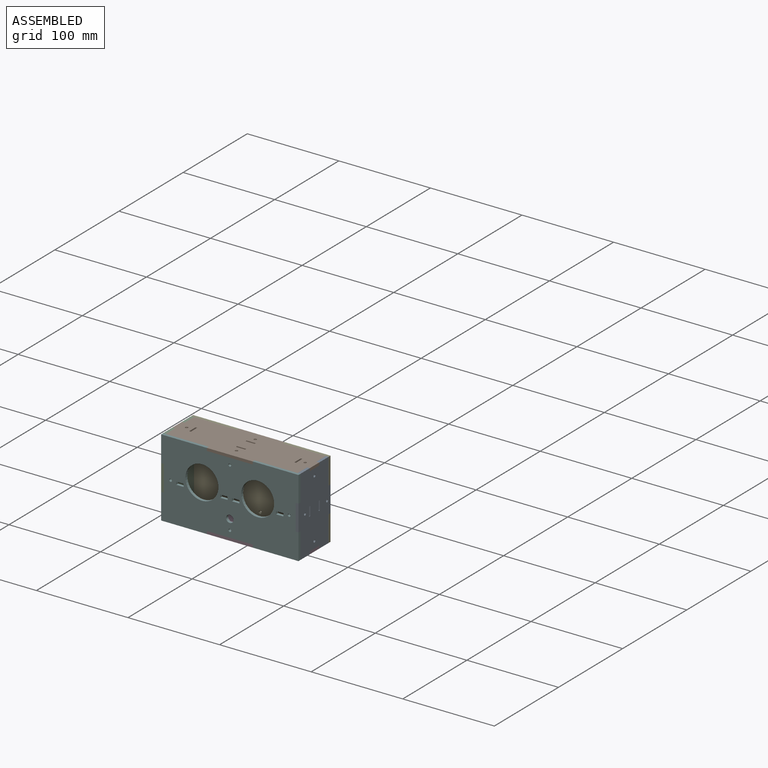
[diagram: assembled view]
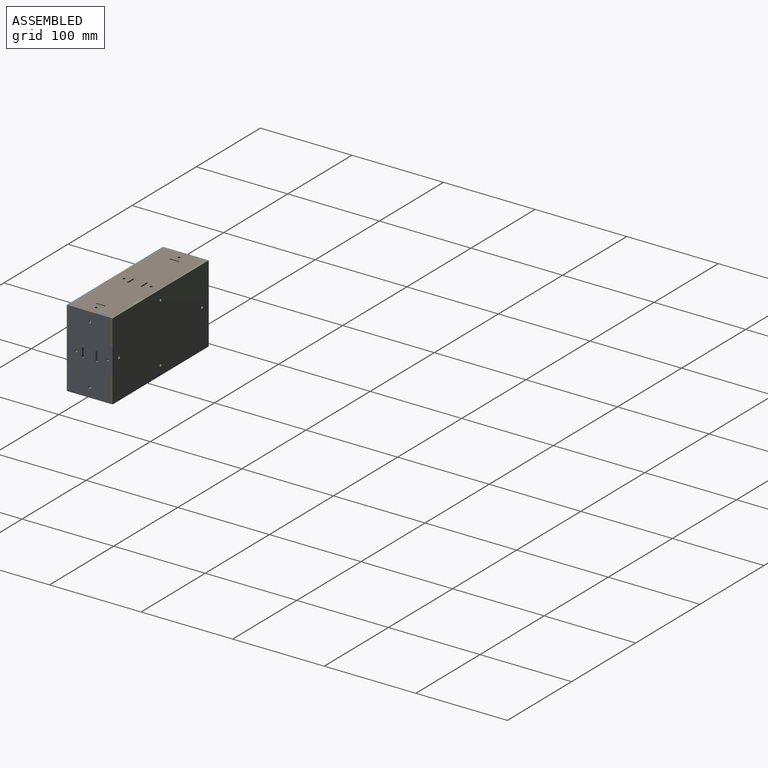
[diagram: assembled view, second angle]
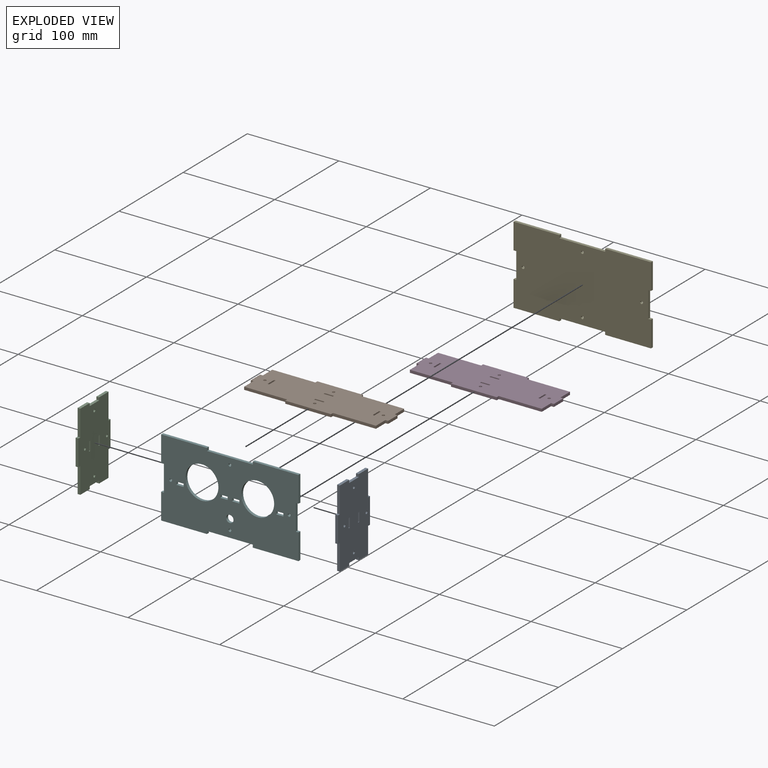
[diagram: exploded view]
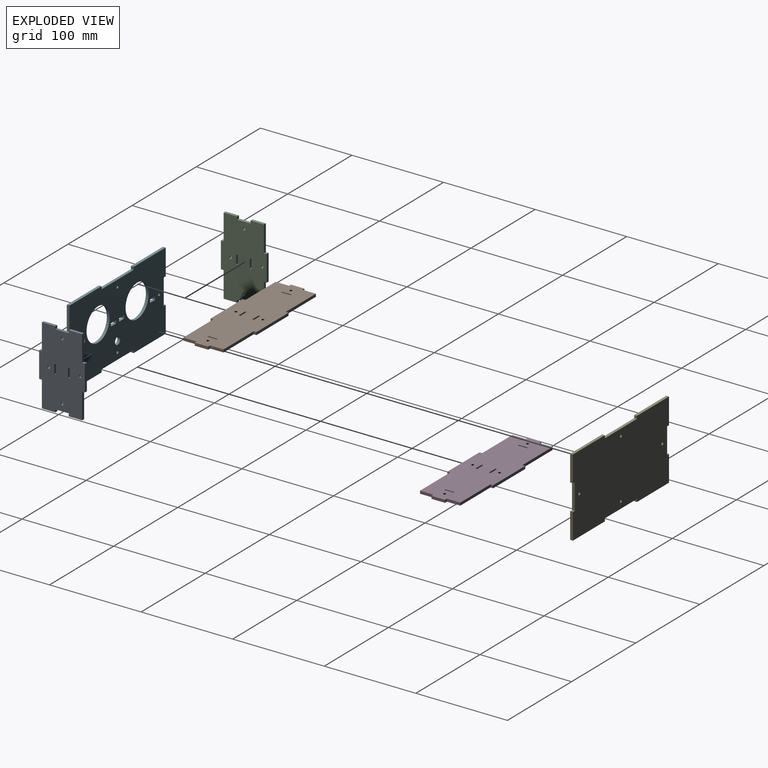
[diagram: exploded view, second angle]
ASSEMBLY  parts=6 mates=5
PART A: 34 faces, bbox 3x50x85 mm
  f0: plane 10x3mm, normal (0,-1,0), area 30mm2, adj f1,f25,f32,f33
  f1: plane 3x1.8mm, normal (0,0,1), area 5.4mm2, adj f0,f2,f32,f33
  f2: plane 10x3mm, normal (0,1,0), area 30mm2, adj f1,f25,f32,f33
  f3: plane 3x1.8mm, normal (0,0,1), area 5.4mm2, adj f4,f26,f32,f33
  f4: plane 10x3mm, normal (0,1,0), area 30mm2, adj f3,f5,f32,f33
  f5: plane 3x1.8mm, normal (0,0,-1), area 5.4mm2, adj f4,f26,f32,f33
  f6: plane 3x3mm, normal (0,-1,0), area 9mm2, adj f7,f27,f32,f33
  f7: plane 14.67x3mm, normal (0,0,1), area 44mm2, adj f6,f8,f32,f33
  f8: plane 3x3mm, normal (0,1,0), area 9mm2, adj f7,f9,f32,f33
  f9: plane 14.67x3mm, normal (0,0,1), area 44mm2, adj f8,f10,f32,f33
  f10: plane 28.33x3mm, normal (0,-1,0), area 85mm2, adj f9,f11,f32,f33
  f11: plane 3x3mm, normal (0,0,1), area 9mm2, adj f10,f12,f32,f33
  f12: plane 28.33x3mm, normal (0,-1,0), area 85mm2, adj f11,f13,f32,f33
  f13: plane 3x3mm, normal (0,0,-1), area 9mm2, adj f12,f14,f32,f33
  f14: plane 28.33x3mm, normal (0,-1,0), area 85mm2, adj f13,f15,f32,f33
  f15: plane 14.67x3mm, normal (0,0,-1), area 44mm2, adj f14,f16,f32,f33
  f16: plane 3x3mm, normal (0,1,0), area 9mm2, adj f15,f17,f32,f33
  f17: plane 14.67x3mm, normal (0,0,-1), area 44mm2, adj f16,f18,f32,f33
  f18: plane 3x3mm, normal (0,-1,0), area 9mm2, adj f17,f19,f32,f33
  f19: plane 14.67x3mm, normal (0,0,-1), area 44mm2, adj f18,f20,f32,f33
  f20: plane 28.33x3mm, normal (0,1,0), area 85mm2, adj f19,f21,f32,f33
  f21: plane 3x3mm, normal (0,0,-1), area 9mm2, adj f20,f22,f32,f33
  f22: plane 28.33x3mm, normal (0,1,0), area 85mm2, adj f21,f23,f32,f33
  f23: plane 3x3mm, normal (0,0,1), area 9mm2, adj f22,f24,f32,f33
  f24: plane 28.33x3mm, normal (0,1,0), area 85mm2, adj f23,f27,f32,f33
  f25: plane 3x1.8mm, normal (0,0,-1), area 5.4mm2, adj f0,f2,f32,f33
  f26: plane 10x3mm, normal (0,-1,0), area 30mm2, adj f3,f5,f32,f33
  f27: plane 14.67x3mm, normal (0,0,1), area 44mm2, adj f6,f24,f32,f33
  f28: cylinder r=1.5mm len=3mm, axis (-1,0,0), area 28.3mm2, adj f32,f33
  f29: cylinder r=1.5mm len=3mm, axis (-1,0,0), area 28.3mm2, adj f32,f33
  f30: cylinder r=1.5mm len=3mm, axis (-1,0,0), area 28.3mm2, adj f32,f33
  f31: cylinder r=1.5mm len=3mm, axis (-1,0,0), area 28.3mm2, adj f32,f33
  f32: plane 85x50mm, normal (1,0,0), area 3757.7mm2, adj f0,f1,f2,f3,f4,f5,f6,f7
  f33: plane 85x50mm, normal (-1,0,0), area 3757.7mm2, adj f0,f1,f2,f3,f4,f5,f6,f7
PART B: 42 faces, bbox 150x50x3 mm
  f0: plane 3x1.8mm, normal (-1,0,0), area 5.4mm2, adj f1,f31,f40,f41
  f1: plane 10x3mm, normal (0,1,0), area 30mm2, adj f0,f2,f40,f41
  f2: plane 3x1.8mm, normal (1,0,0), area 5.4mm2, adj f1,f31,f40,f41
  f3: plane 10x3mm, normal (-1,0,0), area 30mm2, adj f4,f32,f40,f41
  f4: plane 3x1.8mm, normal (0,1,0), area 5.4mm2, adj f3,f5,f40,f41
  f5: plane 10x3mm, normal (1,0,0), area 30mm2, adj f4,f32,f40,f41
  f6: plane 14.67x3mm, normal (1,0,0), area 44mm2, adj f7,f33,f40,f41
  f7: plane 3x3mm, normal (0,-1,0), area 9mm2, adj f6,f8,f40,f41
  f8: plane 14.67x3mm, normal (1,0,0), area 44mm2, adj f7,f9,f40,f41
  f9: plane 3x3mm, normal (0,1,0), area 9mm2, adj f8,f10,f40,f41
  f10: plane 14.67x3mm, normal (1,0,0), area 44mm2, adj f9,f11,f40,f41
  f11: plane 47x3mm, normal (0,1,0), area 141mm2, adj f10,f12,f40,f41
  f12: plane 3x3mm, normal (1,0,0), area 9mm2, adj f11,f13,f40,f41
  f13: plane 50x3mm, normal (0,1,0), area 150mm2, adj f12,f14,f40,f41
  f14: plane 3x3mm, normal (-1,0,0), area 9mm2, adj f13,f15,f40,f41
  f15: plane 47x3mm, normal (0,1,0), area 141mm2, adj f14,f16,f40,f41
  f16: plane 14.67x3mm, normal (-1,0,0), area 44mm2, adj f15,f17,f40,f41
  f17: plane 3x3mm, normal (0,1,0), area 9mm2, adj f16,f18,f40,f41
  f18: plane 14.67x3mm, normal (-1,0,0), area 44mm2, adj f17,f19,f40,f41
  f19: plane 3x3mm, normal (0,-1,0), area 9mm2, adj f18,f20,f40,f41
  f20: plane 14.67x3mm, normal (-1,0,0), area 44mm2, adj f19,f21,f40,f41
  f21: plane 47x3mm, normal (0,-1,0), area 141mm2, adj f20,f22,f40,f41
  f22: plane 3x3mm, normal (-1,0,0), area 9mm2, adj f21,f23,f40,f41
  f23: plane 50x3mm, normal (0,-1,0), area 150mm2, adj f22,f24,f40,f41
  f24: plane 3x3mm, normal (1,0,0), area 9mm2, adj f23,f33,f40,f41
  f25: plane 3x1.8mm, normal (0,1,0), area 5.4mm2, adj f26,f34,f40,f41
  f26: plane 10x3mm, normal (1,0,0), area 30mm2, adj f25,f27,f40,f41
  f27: plane 3x1.8mm, normal (0,-1,0), area 5.4mm2, adj f26,f34,f40,f41
  f28: plane 3x1.8mm, normal (-1,0,0), area 5.4mm2, adj f29,f35,f40,f41
  f29: plane 10x3mm, normal (0,1,0), area 30mm2, adj f28,f30,f40,f41
  f30: plane 3x1.8mm, normal (1,0,0), area 5.4mm2, adj f29,f35,f40,f41
  f31: plane 10x3mm, normal (0,-1,0), area 30mm2, adj f0,f2,f40,f41
  f32: plane 3x1.8mm, normal (0,-1,0), area 5.4mm2, adj f3,f5,f40,f41
  f33: plane 47x3mm, normal (0,-1,0), area 141mm2, adj f6,f24,f40,f41
  f34: plane 10x3mm, normal (-1,0,0), area 30mm2, adj f25,f27,f40,f41
  f35: plane 10x3mm, normal (0,-1,0), area 30mm2, adj f28,f30,f40,f41
  f36: cylinder r=1.5mm len=3mm, axis (0,0,-1), area 28.3mm2, adj f40,f41
  f37: cylinder r=1.5mm len=3mm, axis (0,0,-1), area 28.3mm2, adj f40,f41
  f38: cylinder r=1.5mm len=3mm, axis (0,0,-1), area 28.3mm2, adj f40,f41
  f39: cylinder r=1.5mm len=3mm, axis (0,0,-1), area 28.3mm2, adj f40,f41
  f40: plane 150x50mm, normal (0,0,1), area 6623.7mm2, adj f0,f1,f2,f3,f4,f5,f6,f7
  f41: plane 150x50mm, normal (0,0,-1), area 6623.7mm2, adj f0,f1,f2,f3,f4,f5,f6,f7
PART C: same geometry as A
PART D: same geometry as B
PART E: 26 faces, bbox 150x3x85 mm
  f0: plane 28.33x3mm, normal (1,0,0), area 85mm2, adj f1,f23,f24,f25
  f1: plane 50x3mm, normal (0,0,1), area 150mm2, adj f0,f2,f24,f25
  f2: plane 3x3mm, normal (-1,0,0), area 9mm2, adj f1,f3,f24,f25
  f3: plane 50x3mm, normal (0,0,1), area 150mm2, adj f2,f4,f24,f25
  f4: plane 3x3mm, normal (1,0,0), area 9mm2, adj f3,f5,f24,f25
  f5: plane 50x3mm, normal (0,0,1), area 150mm2, adj f4,f6,f24,f25
  f6: plane 28.33x3mm, normal (-1,0,0), area 85mm2, adj f5,f7,f24,f25
  f7: plane 3x3mm, normal (0,0,-1), area 9mm2, adj f6,f8,f24,f25
  f8: plane 28.33x3mm, normal (-1,0,0), area 85mm2, adj f7,f9,f24,f25
  f9: plane 3x3mm, normal (0,0,1), area 9mm2, adj f8,f10,f24,f25
  f10: plane 28.33x3mm, normal (-1,0,0), area 85mm2, adj f9,f11,f24,f25
  f11: plane 50x3mm, normal (0,0,-1), area 150mm2, adj f10,f12,f24,f25
  f12: plane 3x3mm, normal (1,0,0), area 9mm2, adj f11,f13,f24,f25
  f13: plane 50x3mm, normal (0,0,-1), area 150mm2, adj f12,f14,f24,f25
  f14: plane 3x3mm, normal (-1,0,0), area 9mm2, adj f13,f15,f24,f25
  f15: plane 50x3mm, normal (0,0,-1), area 150mm2, adj f14,f16,f24,f25
  f16: plane 28.33x3mm, normal (1,0,0), area 85mm2, adj f15,f17,f24,f25
  f17: plane 3x3mm, normal (0,0,1), area 9mm2, adj f16,f18,f24,f25
  f18: plane 28.33x3mm, normal (1,0,0), area 85mm2, adj f17,f23,f24,f25
  f19: cylinder r=1.5mm len=3mm, axis (0,1,0), area 28.3mm2, adj f24,f25
  f20: cylinder r=1.5mm len=3mm, axis (0,1,0), area 28.3mm2, adj f24,f25
  f21: cylinder r=1.5mm len=3mm, axis (0,1,0), area 28.3mm2, adj f24,f25
  f22: cylinder r=1.5mm len=3mm, axis (0,1,0), area 28.3mm2, adj f24,f25
  f23: plane 3x3mm, normal (0,0,-1), area 9mm2, adj f0,f18,f24,f25
  f24: plane 150x85mm, normal (0,-1,0), area 12251.7mm2, adj f0,f1,f2,f3,f4,f5,f6,f7
  f25: plane 150x85mm, normal (0,1,0), area 12251.7mm2, adj f0,f1,f2,f3,f4,f5,f6,f7
PART F: 45 faces, bbox 150x3x85 mm
  f0: plane 3.25x3mm, normal (1,0,0), area 9.7mm2, adj f1,f36,f43,f44
  f1: plane 8.1x3mm, normal (0,0,-1), area 24.3mm2, adj f0,f2,f43,f44
  f2: plane 3.25x3mm, normal (-1,0,0), area 9.7mm2, adj f1,f36,f43,f44
  f3: plane 8.1x3mm, normal (0,0,1), area 24.3mm2, adj f4,f37,f43,f44
  f4: plane 3.25x3mm, normal (1,0,0), area 9.7mm2, adj f3,f5,f43,f44
  f5: plane 8.1x3mm, normal (0,0,-1), area 24.3mm2, adj f4,f37,f43,f44
  f6: plane 28.33x3mm, normal (1,0,0), area 85mm2, adj f7,f38,f43,f44
  f7: plane 50x3mm, normal (0,0,1), area 150mm2, adj f6,f8,f43,f44
  f8: plane 3x3mm, normal (-1,0,0), area 9mm2, adj f7,f9,f43,f44
  f9: plane 50x3mm, normal (0,0,1), area 150mm2, adj f8,f10,f43,f44
  f10: plane 3x3mm, normal (1,0,0), area 9mm2, adj f9,f11,f43,f44
  f11: plane 50x3mm, normal (0,0,1), area 150mm2, adj f10,f12,f43,f44
  f12: plane 28.33x3mm, normal (-1,0,0), area 85mm2, adj f11,f13,f43,f44
  f13: plane 3x3mm, normal (0,0,-1), area 9mm2, adj f12,f14,f43,f44
  f14: plane 28.33x3mm, normal (-1,0,0), area 85mm2, adj f13,f15,f43,f44
  f15: plane 3x3mm, normal (0,0,1), area 9mm2, adj f14,f16,f43,f44
  f16: plane 28.33x3mm, normal (-1,0,0), area 85mm2, adj f15,f17,f43,f44
  f17: plane 50x3mm, normal (0,0,-1), area 150mm2, adj f16,f18,f43,f44
  f18: plane 3x3mm, normal (1,0,0), area 9mm2, adj f17,f19,f43,f44
  f19: plane 50x3mm, normal (0,0,-1), area 150mm2, adj f18,f20,f43,f44
  f20: plane 3x3mm, normal (-1,0,0), area 9mm2, adj f19,f21,f43,f44
  f21: plane 50x3mm, normal (0,0,-1), area 150mm2, adj f20,f22,f43,f44
  f22: plane 28.33x3mm, normal (1,0,0), area 85mm2, adj f21,f23,f43,f44
  f23: plane 3x3mm, normal (0,0,1), area 9mm2, adj f22,f24,f43,f44
  f24: plane 28.33x3mm, normal (1,0,0), area 85mm2, adj f23,f38,f43,f44
  f25: plane 8.1x3mm, normal (0,0,-1), area 24.3mm2, adj f26,f39,f43,f44
  f26: plane 3.25x3mm, normal (-1,0,0), area 9.7mm2, adj f25,f27,f43,f44
  f27: plane 8.1x3mm, normal (0,0,1), area 24.3mm2, adj f26,f39,f43,f44
  f28: plane 8.1x3mm, normal (0,0,-1), area 24.3mm2, adj f29,f40,f43,f44
  f29: plane 3.25x3mm, normal (-1,0,0), area 9.7mm2, adj f28,f30,f43,f44
  f30: plane 8.1x3mm, normal (0,0,1), area 24.3mm2, adj f29,f40,f43,f44
  f31: cylinder r=18mm len=36mm, axis (0,1,0), area 339.3mm2, adj f43,f44
  f32: cylinder r=1.5mm len=3mm, axis (0,1,0), area 28.3mm2, adj f43,f44
  f33: cylinder r=1.5mm len=3mm, axis (0,1,0), area 28.3mm2, adj f43,f44
  f34: cylinder r=1.5mm len=3mm, axis (0,1,0), area 28.3mm2, adj f43,f44
  f35: cylinder r=4mm len=8mm, axis (0,1,0), area 75.4mm2, adj f43,f44
  f36: plane 8.1x3mm, normal (0,0,1), area 24.3mm2, adj f0,f2,f43,f44
  f37: plane 3.25x3mm, normal (-1,0,0), area 9.7mm2, adj f3,f5,f43,f44
  f38: plane 3x3mm, normal (0,0,-1), area 9mm2, adj f6,f24,f43,f44
  f39: plane 3.25x3mm, normal (1,0,0), area 9.7mm2, adj f25,f27,f43,f44
  f40: plane 3.25x3mm, normal (1,0,0), area 9.7mm2, adj f28,f30,f43,f44
  f41: cylinder r=1.5mm len=3mm, axis (0,1,0), area 28.3mm2, adj f43,f44
  f42: cylinder r=18mm len=36mm, axis (0,1,0), area 339.3mm2, adj f43,f44
  f43: plane 150x85mm, normal (0,-1,0), area 10060.4mm2, adj f0,f1,f2,f3,f4,f5,f6,f7
  f44: plane 150x85mm, normal (0,1,0), area 10060.4mm2, adj f0,f1,f2,f3,f4,f5,f6,f7
PLACE A t=(256.72,105.6,54.43)mm
PLACE B t=(184.72,105.6,93.93)mm
PLACE C t=(109.72,105.6,54.43)mm
PLACE D t=(184.72,105.6,11.93)mm
PLACE E t=(184.72,130.6,54.43)mm
PLACE F t=(184.72,83.6,54.43)mm
MATE fastened C.f12 <-> F.f43  axis (0,-1,0) through (112.72,80.6,54.43)mm
MATE fastened F.f43 <-> D.f23  axis (0,-1,0) through (184.72,80.6,14.93)mm
MATE fastened F.f43 <-> B.f23  axis (0,-1,0) through (184.72,80.6,93.93)mm
MATE fastened F.f43 <-> A.f12  axis (0,-1,0) through (256.72,80.6,54.43)mm
MATE fastened E.f25 <-> B.f13  axis (0,1,0) through (184.72,130.6,93.93)mm
